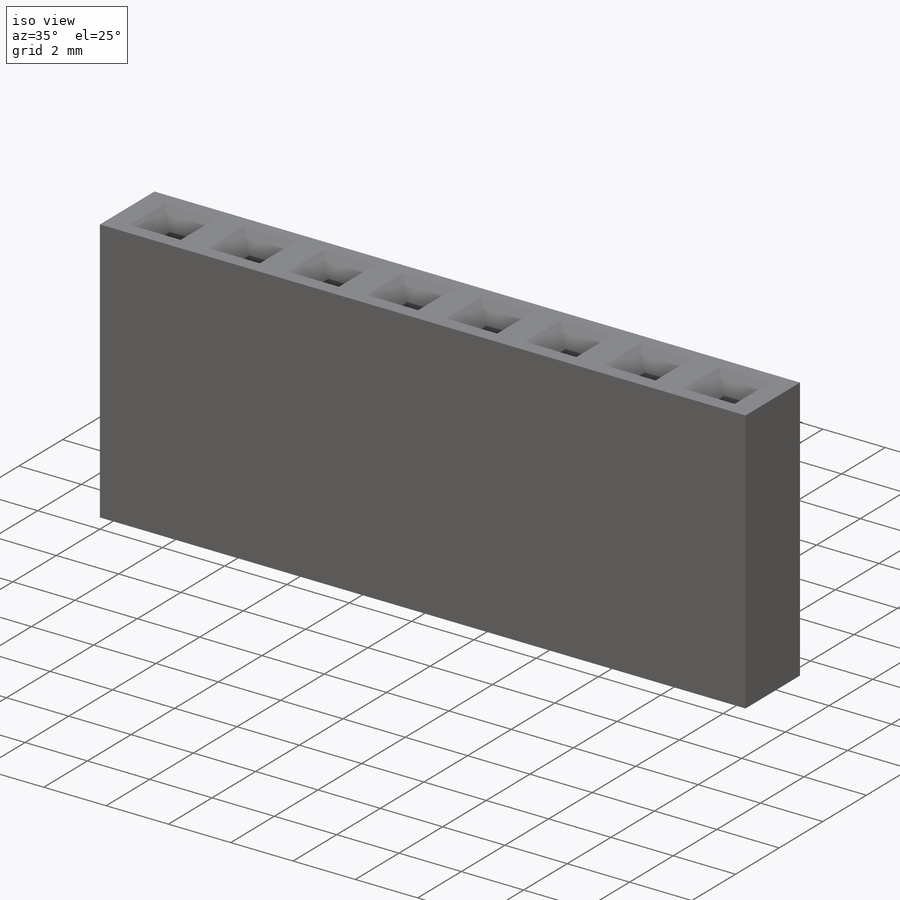
[diagram: iso view]
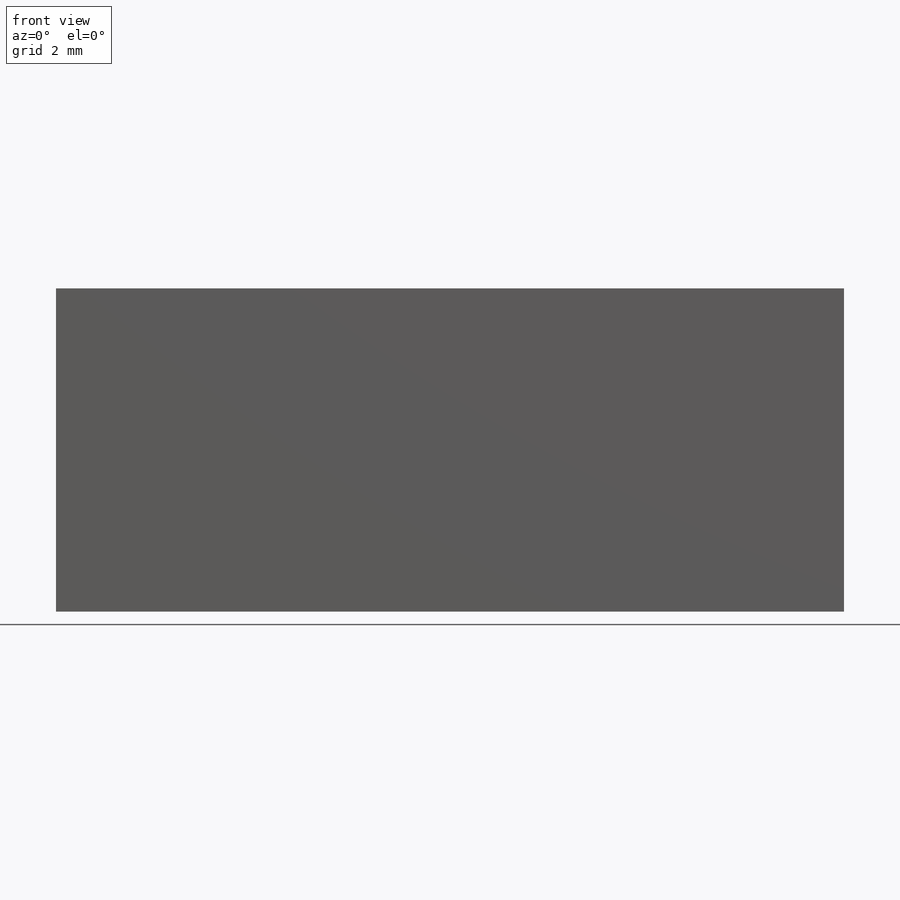
[diagram: front view]
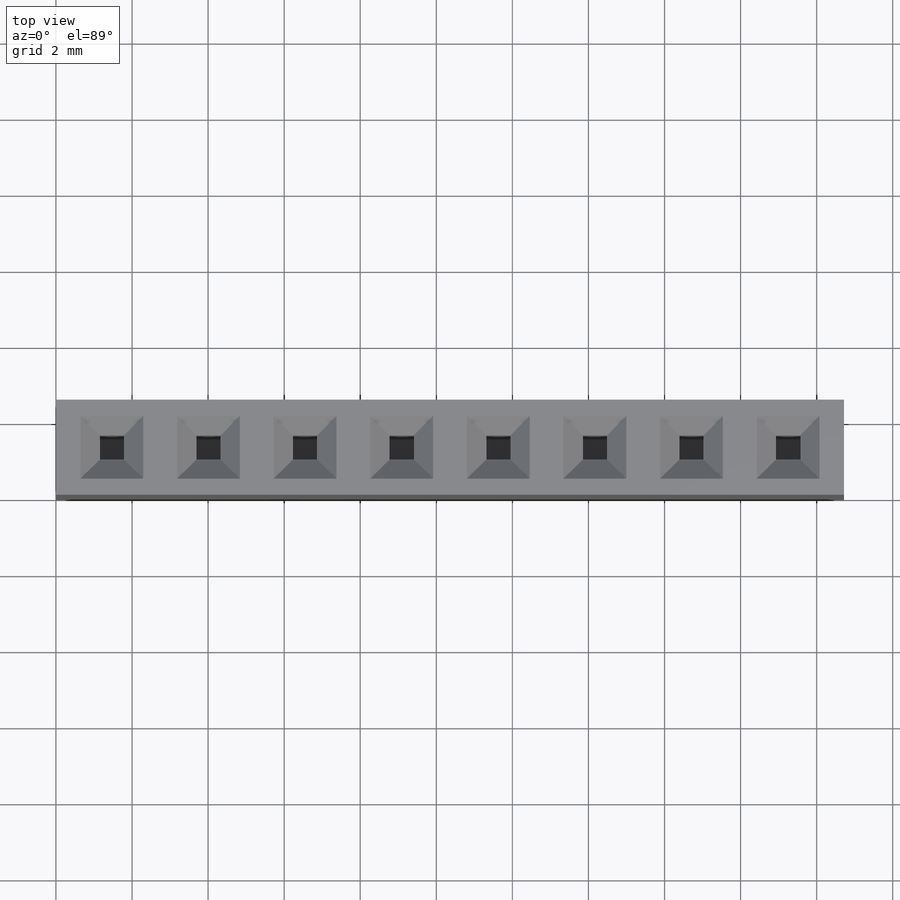
[diagram: top view]
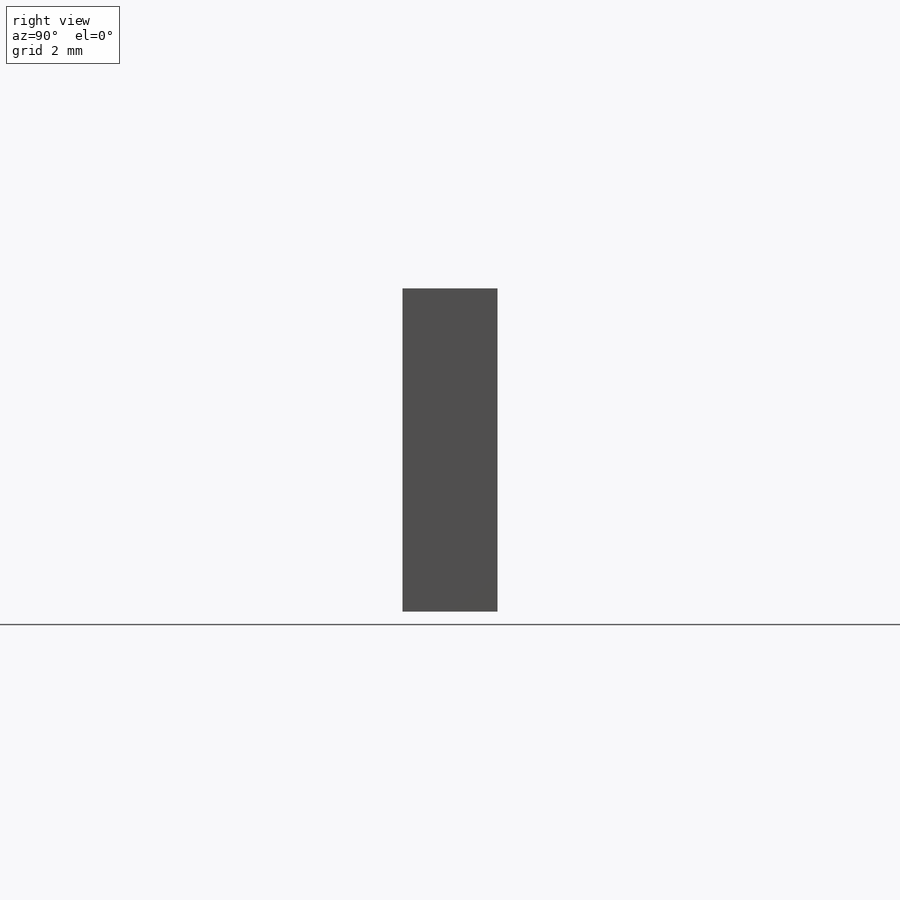
[diagram: right view]
SOLIDWORKS PART (.sldprt)
format: sldprt  version: not decoded by parser v0  size: 190,976 bytes
history: native  units: mm
features: sketch x2, material x1, extrude x1, cut_extrude x1, chamfer x1, pattern_linear x1 (+12 scaffold rows collapsed)
feature tree (19):
  scaffold x12  (default folders/planes/origin — collapsed)
  material  "ABS PC"
  sketch  "Sketch1"  dims[D1=2.5mm D2=20.72mm]
  extrude  "Boss-Extrude1"  Depth=8.5mm
  sketch  "Sketch2"  dims[D1=0.635mm D2=0.635mm D3=1.25mm D4=1.47mm]
  cut_extrude  "Cut-Extrude1"  Depth=6.35mm
  chamfer  "Chamfer1"  Distance=0.508mm Angle=45deg
  pattern_linear  "LPattern1"  Count1=8 Count2=1 Spacing1=2.54mm Spacing2=2.54mm
decode coverage: 6 of 6 modeling features carry decoded parameters
note: suppression state not decoded; provenance and decode notes live in map.json
